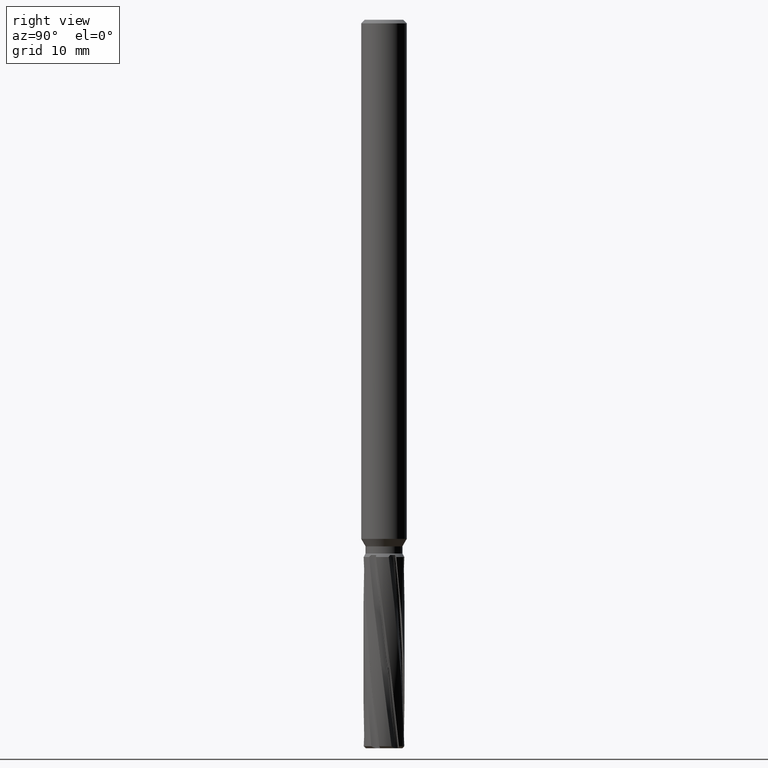
[diagram: clean part render]
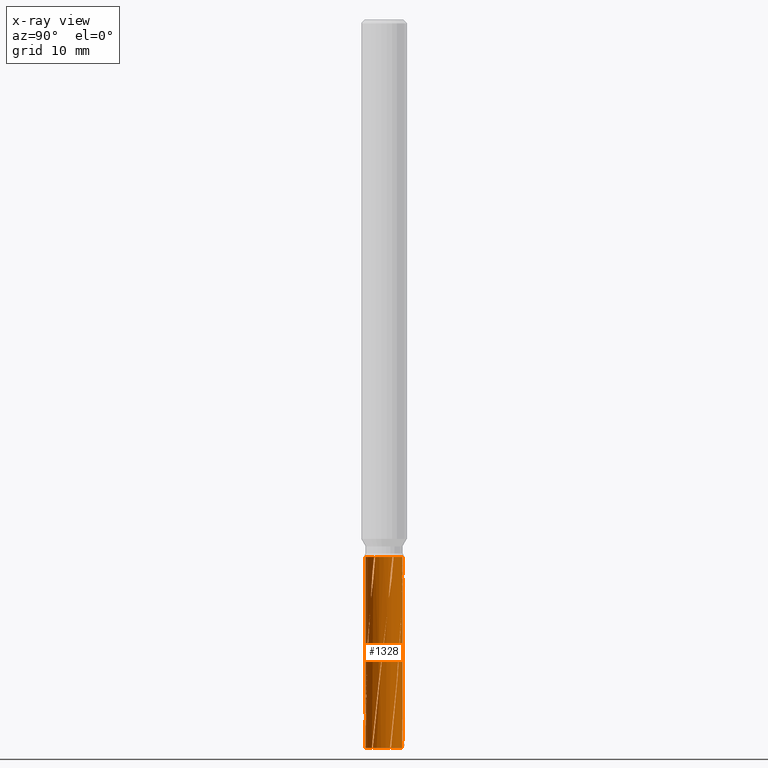
[diagram: x-ray — body ghosted, one internal face saturated and labeled with its STEP entity id]
A machine part, right view, then the same camera in x-ray: the body is ghosted and one INTERNAL B-rep face — a face not visible from any outside direction — is saturated and labeled: STEP entity #1328.
In plain terms, the highlighted cylindrical surface (edge-blend (fillet) strip) has radius 2.025 mm, axis along (-0, -0, 1).
Its self-contained STEP definition (entity closure, byte-faithful):
#752=EDGE_CURVE('',#1498,#1490,#2011,.T.);
#774=VERTEX_POINT('',#2033);
#786=VERTEX_POINT('',#2046);
#796=VERTEX_POINT('',#2057);
#814=EDGE_CURVE('',#1598,#1076,#2076,.T.);
#858=VERTEX_POINT('',#2122);
#884=VERTEX_POINT('',#2151);
#940=VERTEX_POINT('',#2214);
#942=EDGE_CURVE('',#1348,#858,#2216,.T.);
#1034=VERTEX_POINT('',#2317);
#1036=EDGE_CURVE('',#1526,#1112,#2319,.T.);
#1074=EDGE_CURVE('',#1756,#796,#2362,.T.);
#1076=VERTEX_POINT('',#2364);
#1112=VERTEX_POINT('',#2405);
#1234=EDGE_CURVE('',#1300,#884,#2534,.T.);
#1248=EDGE_CURVE('',#1034,#796,#2550,.T.);
#1300=VERTEX_POINT('',#2605);
#1328=ADVANCED_FACE('',(#2640),#2641,.F.);
#1330=EDGE_CURVE('',#1348,#1856,#2643,.T.);
#1348=VERTEX_POINT('',#2662);
#1370=EDGE_CURVE('',#1300,#1560,#2686,.T.);
#1400=VERTEX_POINT('',#2719);
#1424=EDGE_CURVE('',#1034,#786,#2743,.T.);
#1470=VERTEX_POINT('',#2792);
#1490=VERTEX_POINT('',#2814);
#1498=VERTEX_POINT('',#2824);
#1526=VERTEX_POINT('',#2853);
#1560=VERTEX_POINT('',#2892);
#1568=EDGE_CURVE('',#858,#1526,#2900,.T.);
#1598=VERTEX_POINT('',#2933);
#1646=EDGE_CURVE('',#1076,#1560,#2986,.T.);
#1680=EDGE_CURVE('',#1498,#1756,#3023,.T.);
#1696=EDGE_CURVE('',#1112,#1598,#3039,.T.);
#1704=EDGE_CURVE('',#1470,#1856,#3047,.T.);
#1710=EDGE_CURVE('',#774,#940,#3053,.T.);
#1712=EDGE_CURVE('',#1470,#786,#3055,.T.);
#1728=EDGE_CURVE('',#940,#1490,#3074,.T.);
#1756=VERTEX_POINT('',#3104);
#1856=VERTEX_POINT('',#3212);
#1868=EDGE_CURVE('',#774,#1400,#3225,.T.);
#1874=EDGE_CURVE('',#884,#1400,#3232,.T.);
#2011=CIRCLE('',#4028,2.025);
#2033=CARTESIAN_POINT('',(-1.73250904297211,1.04834985382736,-59.0));
#2046=CARTESIAN_POINT('',(3.76986801977085E-010,-2.025,-59.8832557996088));
#2057=CARTESIAN_POINT('',(-1.70332545662622,-1.09512893707047,-59.0));
#2076=CIRCLE('',#4406,2.025);
#2122=CARTESIAN_POINT('',(-1.52856325811313,-1.32820155320891,-80.0));
#2151=CARTESIAN_POINT('',(-0.31143547843148,2.00090802956412,-60.757443826211));
#2214=CARTESIAN_POINT('',(-1.88855492345453,0.730742978820623,-60.7574438262111));
#2216=CIRCLE('',#5102,2.025);
#2317=CARTESIAN_POINT('',(-0.0416430839821341,-2.0245717704138,-59.0));
#2319=CIRCLE('',#5838,2.025);
#2362=B_SPLINE_CURVE_WITH_KNOTS('',3,(#6070,#6071,#6072,#6073,#6074,#6075,#6076,#6077,#6078,#6079,#6080,#6081,#6082,#6083,#6084,#6085,#6086,#6087),.UNSPECIFIED.,.F.,.F.,(4,2,2,2,2,2,2,2,4),(0.0,1.27524139736683,1.42717103754914,1.46988879859441,1.49498374662603,1.51707624867421,1.54456344994193,1.59829725532202,1.64460690371373),.UNSPECIFIED.);
#2364=CARTESIAN_POINT('',(-0.385974657368293,1.98787538942194,-80.0));
#2405=CARTESIAN_POINT('',(-1.91453791548143,0.659673836213021,-80.0));
#2534=B_SPLINE_CURVE_WITH_KNOTS('',3,(#7282,#7283,#7284,#7285,#7286,#7287,#7288,#7289,#7290,#7291,#7292,#7293,#7294,#7295,#7296,#7297,#7298,#7299,#7300,#7301,#7302,#7303,#7304,#7305,#7306,#7307,#7308,#7309,#7310,#7311,#7312,#7313,#7314,#7315,#7316,#7317,#7318,#7319,#7320,#7321,#7322,#7323),.UNSPECIFIED.,.F.,.F.,(4,2,2,2,2,2,2,2,2,2,2,2,2,2,2,2,2,2,2,2,4),(0.0,0.505175303807412,1.14428144954258,1.32998421430831,1.73880439039993,2.33256994216791,2.41010496009628,2.42914903927009,2.43322689863991,2.43530067520471,2.43659890927,2.43769627818558,2.4389225074758,2.44093295089966,2.4453863071083,2.46543174452827,2.57583333125076,2.95957345489547,3.96451147653846,4.20685910941555,5.32789526401996),.UNSPECIFIED.);
#2550=CIRCLE('',#7675,2.025);
#2605=CARTESIAN_POINT('',(-3.76986940754963E-010,2.025,-59.8832557996088));
#2640=FACE_OUTER_BOUND('',#7957,.T.);
#2641=CYLINDRICAL_SURFACE('',#7958,2.025);
#2643=LINE('',#7961,#7962);
#2662=CARTESIAN_POINT('',(2.47982786649561E-016,-2.025,-80.0));
#2686=LINE('',#8222,#8223);
#2719=CARTESIAN_POINT('',(-0.0967467516093648,2.02268758488627,-59.0));
#2743=B_SPLINE_CURVE_WITH_KNOTS('',3,(#8538,#8539,#8540,#8541,#8542,#8543,#8544,#8545,#8546,#8547,#8548,#8549,#8550,#8551,#8552,#8553,#8554,#8555,#8556,#8557,#8558,#8559,#8560,#8561,#8562,#8563,#8564,#8565,#8566,#8567,#8568,#8569,#8570,#8571,#8572,#8573,#8574,#8575,#8576,#8577,#8578,#8579),.UNSPECIFIED.,.F.,.F.,(4,2,2,2,2,2,2,2,2,2,2,2,2,2,2,2,2,2,2,2,4),(0.0,0.505175301716471,1.14428144254571,1.32998420645629,1.73880436051843,2.33256995700777,2.41010498037675,2.42914906040999,2.4332269244743,2.4353007050559,2.43659894160524,2.43769631257753,2.43892254415773,2.44093299152524,2.44538635536927,2.46543182162214,2.57583356123416,2.95957419940637,3.96451370038363,4.20686167870062,5.32789935169217),.UNSPECIFIED.);
#2792=CARTESIAN_POINT('',(-5.52550762306174E-016,-2.025,-76.7677429326267));
#2814=CARTESIAN_POINT('',(-1.80007220823558,0.92755864781581,-59.0));
#2824=CARTESIAN_POINT('',(-1.77415212695425,-0.976221916586448,-59.0));
#2853=CARTESIAN_POINT('',(-1.59832459591781,-1.24337584264942,-80.0));
#2892=CARTESIAN_POINT('',(-1.55340353752914E-015,2.025,-76.7677429326267));
#2900=B_SPLINE_CURVE_WITH_KNOTS('',3,(#9311,#9312,#9313,#9314,#9315,#9316,#9317,#9318,#9319,#9320,#9321,#9322,#9323,#9324,#9325,#9326,#9327,#9328,#9329,#9330,#9331,#9332,#9333,#9334,#9335,#9336,#9337,#9338,#9339,#9340,#9341,#9342,#9343,#9344,#9345,#9346,#9347,#9348,#9349,#9350,#9351,#9352,#9353,#9354,#9355,#9356,#9357,#9358,#9359,#9360),.UNSPECIFIED.,.F.,.F.,(4,2,2,2,2,2,2,2,2,2,2,2,2,2,2,2,2,2,2,2,2,2,2,2,4),(0.0,2.98703623567296,3.9028094084057,6.73501946470454,8.97119993273934,11.9634666392782,15.3497501121254,15.6908486712531,15.7068127575704,15.7115543342679,15.7129764401485,15.7137328921582,15.7142262293881,15.7146650094546,15.7151982143902,15.7161339188691,15.7183507024257,15.7283352624674,15.7873416617822,16.0223824182631,17.7315453637301,18.8880761531135,19.1814779920079,20.665058405595,22.1464470185606),.UNSPECIFIED.);
#2933=CARTESIAN_POINT('',(-1.87595736414519,0.762501782233609,-80.0));
#2986=B_SPLINE_CURVE_WITH_KNOTS('',3,(#9989,#9990,#9991,#9992,#9993,#9994,#9995,#9996,#9997,#9998,#9999,#10000,#10001,#10002,#10003,#10004,#10005,#10006,#10007,#10008,#10009,#10010,#10011,#10012,#10013,#10014,#10015,#10016,#10017,#10018,#10019,#10020,#10021,#10022,#10023,#10024,#10025,#10026,#10027,#10028,#10029,#10030,#10031,#10032,#10033,#10034,#10035,#10036,#10037,#10038),.UNSPECIFIED.,.F.,.F.,(4,2,2,2,2,2,2,2,2,2,2,2,2,2,2,2,2,2,2,2,2,2,2,2,4),(0.0,2.98703623470969,3.90280940605496,6.73501946043637,8.97119992694924,11.9634666331291,15.3497501091327,15.6908486695551,15.7068127558647,15.7115543344403,15.7129764389068,15.7137328892284,15.7142262254452,15.7146650045995,15.7151982083587,15.716133911095,15.7183506901219,15.7283352286545,15.7873415001154,16.0223817457621,17.7315409794151,18.8880692553313,19.1814704550481,20.6650476433485,22.1464330345446),.UNSPECIFIED.);
#3023=B_SPLINE_CURVE_WITH_KNOTS('',3,(#10157,#10158,#10159,#10160,#10161,#10162,#10163,#10164,#10165,#10166,#10167,#10168,#10169,#10170,#10171,#10172,#10173,#10174,#10175,#10176,#10177,#10178,#10179,#10180,#10181,#10182,#10183,#10184,#10185,#10186,#10187,#10188,#10189,#10190,#10191,#10192,#10193,#10194,#10195,#10196,#10197,#10198),.UNSPECIFIED.,.F.,.F.,(4,2,2,2,2,2,2,2,2,2,2,2,2,2,2,2,2,2,2,2,4),(0.0,0.505175300584551,1.14428143883134,1.32998420180716,1.73880437330474,2.33256991827027,2.41010493592934,2.42914901538744,2.43322688154408,2.43530066396906,2.43659890167126,2.43769627361745,2.4389225062947,2.44093295549154,2.4453863249377,2.46543182608161,2.57583376489844,2.95957511242578,3.9645163214973,4.20686472386781,5.32790444481297),.UNSPECIFIED.);
#3039=B_SPLINE_CURVE_WITH_KNOTS('',3,(#10222,#10223,#10224,#10225,#10226,#10227,#10228,#10229,#10230,#10231,#10232,#10233,#10234,#10235,#10236,#10237,#10238,#10239,#10240,#10241,#10242,#10243,#10244,#10245,#10246,#10247,#10248,#10249,#10250,#10251,#10252,#10253,#10254,#10255,#10256,#10257,#10258,#10259,#10260,#10261,#10262,#10263,#10264,#10265,#10266,#10267,#10268,#10269,#10270,#10271),.UNSPECIFIED.,.F.,.F.,(4,2,2,2,2,2,2,2,2,2,2,2,2,2,2,2,2,2,2,2,2,2,2,2,4),(0.0,2.98703623660147,3.9028094094729,6.7350194680291,8.97119993701508,11.9634666451404,15.3497501277564,15.6908486914511,15.7068127779464,15.7115543583315,15.7129764631494,15.7137329134104,15.7142262496986,15.7146650289615,15.7151982328279,15.7161339355854,15.7183507145122,15.7283352503614,15.7873415059098,16.0223816872157,17.731540449123,18.8880684067927,19.1814695286859,20.6650463090351,22.1464312923779),.UNSPECIFIED.);
#3047=B_SPLINE_CURVE_WITH_KNOTS('',3,(#10344,#10345,#10346,#10347,#10348,#10349,#10350,#10351,#10352,#10353,#10354,#10355,#10356,#10357,#10358,#10359,#10360,#10361,#10362,#10363,#10364,#10365,#10366,#10367,#10368,#10369,#10370,#10371,#10372,#10373,#10374,#10375,#10376,#10377,#10378,#10379,#10380,#10381,#10382,#10383,#10384,#10385,#10386,#10387,#10388,#10389,#10390,#10391,#10392,#10393),.UNSPECIFIED.,.F.,.F.,(4,2,2,2,2,2,2,2,2,2,2,2,2,2,2,2,2,2,2,2,2,2,2,2,4),(0.0,2.98703623473837,3.90280940575264,6.73501946096666,8.97119992968954,11.9634666335966,15.3497501139165,15.6908486791252,15.7068127657085,15.7115543427841,15.7129764493767,15.7137329019629,15.7142262395164,15.7146650198967,15.7151982253685,15.7161339309139,15.7183507159597,15.7283352783248,15.7873416913644,16.0223825007269,17.7315458271608,18.8880768724235,19.1814787758889,20.6650595192565,22.1464484600533),.UNSPECIFIED.);
#3053=B_SPLINE_CURVE_WITH_KNOTS('',3,(#10456,#10457,#10458,#10459,#10460,#10461,#10462,#10463,#10464,#10465,#10466,#10467,#10468,#10469,#10470,#10471,#10472,#10473,#10474,#10475,#10476,#10477,#10478,#10479,#10480,#10481,#10482,#10483,#10484,#10485,#10486,#10487,#10488,#10489,#10490,#10491,#10492,#10493,#10494,#10495,#10496,#10497),.UNSPECIFIED.,.F.,.F.,(4,2,2,2,2,2,2,2,2,2,2,2,2,2,2,2,2,2,2,2,4),(0.0,0.505175303287873,1.14428144775944,1.32998421295055,1.73880437803354,2.33256995054143,2.41010497363379,2.42914905385131,2.43322692009167,2.43530070246372,2.43659894034602,2.43769631246638,2.43892254521256,2.44093299441526,2.44538636192494,2.46543184194877,2.57583365709082,2.95957455738378,3.96451476278513,4.20686291041331,5.3279013622028),.UNSPECIFIED.);
#3055=LINE('',#10500,#10501);
#3074=B_SPLINE_CURVE_WITH_KNOTS('',3,(#10752,#10753,#10754,#10755,#10756,#10757,#10758,#10759,#10760,#10761,#10762,#10763,#10764,#10765,#10766,#10767,#10768,#10769),.UNSPECIFIED.,.F.,.F.,(4,2,2,2,2,2,2,2,4),(0.0,1.27524139874265,1.42717103894308,1.46988879998623,1.4949837480416,1.51707625009658,1.54456345136774,1.59829725676356,1.64460690515378),.UNSPECIFIED.);
#3104=CARTESIAN_POINT('',(-1.57711944502307,-1.27016505074346,-60.7574438262107));
#3212=CARTESIAN_POINT('',(-9.16842692261304E-016,-2.025,-77.5368457073387));
#3225=CIRCLE('',#11769,2.025);
#3232=B_SPLINE_CURVE_WITH_KNOTS('',3,(#11941,#11942,#11943,#11944,#11945,#11946,#11947,#11948,#11949,#11950,#11951,#11952,#11953,#11954,#11955,#11956,#11957,#11958),.UNSPECIFIED.,.F.,.F.,(4,2,2,2,2,2,2,2,4),(0.0,1.27524139815027,1.42717103840948,1.46988879947422,1.49498374752788,1.517076249591,1.54456345086805,1.59829725625615,1.64460690469178),.UNSPECIFIED.);
#4028=AXIS2_PLACEMENT_3D('',#12081,#12082,#12083);
#4406=AXIS2_PLACEMENT_3D('',#12126,#12127,#12128);
#5102=AXIS2_PLACEMENT_3D('',#12265,#12266,#12267);
#5838=AXIS2_PLACEMENT_3D('',#12381,#12382,#12383);
#6070=CARTESIAN_POINT('',(-1.57711944313955,-1.27016505308216,-60.757443849237));
#6071=CARTESIAN_POINT('',(-1.60146120044553,-1.23994074590704,-60.334138554559));
#6072=CARTESIAN_POINT('',(-1.6352392283465,-1.19590125648152,-59.7741474127266));
#6073=CARTESIAN_POINT('',(-1.67306326355806,-1.14084831452031,-59.3105167048634));
#6074=CARTESIAN_POINT('',(-1.67734892037274,-1.13454388212788,-59.2601272949234));
#6075=CARTESIAN_POINT('',(-1.68306747361489,-1.12601685435565,-59.1970407664876));
#6076=CARTESIAN_POINT('',(-1.68434720404345,-1.12410187078332,-59.1831688503941));
#6077=CARTESIAN_POINT('',(-1.68641393280371,-1.12099730246313,-59.1612152297132));
#6078=CARTESIAN_POINT('',(-1.68718825442099,-1.11983159641365,-59.1530860548146));
#6079=CARTESIAN_POINT('',(-1.68866099772607,-1.11760932024828,-59.1378217433692));
#6080=CARTESIAN_POINT('',(-1.68935860098126,-1.1165545917282,-59.130671762988));
#6081=CARTESIAN_POINT('',(-1.69094127002201,-1.11415670286496,-59.1146462631996));
#6082=CARTESIAN_POINT('',(-1.69183277032835,-1.11280258510828,-59.1057528890595));
#6083=CARTESIAN_POINT('',(-1.69450560604576,-1.10873176691677,-59.0795295744658));
#6084=CARTESIAN_POINT('',(-1.69634202858604,-1.10592080348724,-59.0620733466106));
#6085=CARTESIAN_POINT('',(-1.69986990294183,-1.10048911925205,-59.0298619998616));
#6086=CARTESIAN_POINT('',(-1.70156901294785,-1.09786084847306,-59.0148597197898));
#6087=CARTESIAN_POINT('',(-1.70332545662622,-1.09512893707047,-59.0));
#7282=CARTESIAN_POINT('',(0.0416430839821543,2.0245717704138,-59.0));
#7283=CARTESIAN_POINT('',(0.0464989991859896,2.0244718898921,-59.1683217087008));
#7284=CARTESIAN_POINT('',(0.0375088001717238,2.02483284093919,-59.4263334873678));
#7285=CARTESIAN_POINT('',(-0.0236881303644931,2.02514991147878,-60.1823153393947));
#7286=CARTESIAN_POINT('',(-0.0779322816087154,2.024455268921,-60.6254761337555));
#7287=CARTESIAN_POINT('',(-0.158000432044439,2.01890747643567,-61.1826173102952));
#7288=CARTESIAN_POINT('',(-0.176689133292799,2.01737155893593,-61.3070851941862));
#7289=CARTESIAN_POINT('',(-0.238971801997668,2.01131029777954,-61.7089099300843));
#7290=CARTESIAN_POINT('',(-0.28363914243731,2.00592103906426,-61.9807582043633));
#7291=CARTESIAN_POINT('',(-0.427560252941033,1.98123596803807,-62.9061914774307));
#7292=CARTESIAN_POINT('',(-0.487019418794244,1.9657063475614,-63.312998463855));
#7293=CARTESIAN_POINT('',(-0.513012005156049,1.95894188423401,-63.4457512987481));
#7294=CARTESIAN_POINT('',(-0.515465324412978,1.95829628742263,-63.4565471241076));
#7295=CARTESIAN_POINT('',(-0.517828293849923,1.95767185461568,-63.4638574059328));
#7296=CARTESIAN_POINT('',(-0.518463298854121,1.95750383011099,-63.4656347515585));
#7297=CARTESIAN_POINT('',(-0.519239230412679,1.95729804619644,-63.4668791434204));
#7298=CARTESIAN_POINT('',(-0.51939313392936,1.95725721376848,-63.4670913526753));
#7299=CARTESIAN_POINT('',(-0.519638942453776,1.95719196218355,-63.4673280573054));
#7300=CARTESIAN_POINT('',(-0.519734882096526,1.95716648852455,-63.4674038506959));
#7301=CARTESIAN_POINT('',(-0.519903200526111,1.95712178123346,-63.4674818710971));
#7302=CARTESIAN_POINT('',(-0.519971720879672,1.95710357796413,-63.467501385656));
#7303=CARTESIAN_POINT('',(-0.520102706855588,1.95706877195869,-63.4675059888311));
#7304=CARTESIAN_POINT('',(-0.520160777613415,1.95705333826532,-63.4674958110033));
#7305=CARTESIAN_POINT('',(-0.520279798406946,1.95702170033793,-63.4674496143177));
#7306=CARTESIAN_POINT('',(-0.520336789069635,1.95700654796089,-63.4674120525885));
#7307=CARTESIAN_POINT('',(-0.520472276706924,1.9569705201568,-63.4672941792478));
#7308=CARTESIAN_POINT('',(-0.520544138112448,1.95695140565059,-63.4671992829707));
#7309=CARTESIAN_POINT('',(-0.520735695500348,1.95690044562375,-63.4668926334626));
#7310=CARTESIAN_POINT('',(-0.520843581775599,1.95687173098373,-63.4666213548969));
#7311=CARTESIAN_POINT('',(-0.521324973536473,1.95674358006034,-63.465122453752));
#7312=CARTESIAN_POINT('',(-0.521540194233272,1.95668618916755,-63.463134777926));
#7313=CARTESIAN_POINT('',(-0.522361963851976,1.95646709576485,-63.4526790422465));
#7314=CARTESIAN_POINT('',(-0.521868946964075,1.95659865321845,-63.4352566185066));
#7315=CARTESIAN_POINT('',(-0.518848880556406,1.9574030576003,-63.3634237539242));
#7316=CARTESIAN_POINT('',(-0.511337272599718,1.95939447015709,-63.2591810700344));
#7317=CARTESIAN_POINT('',(-0.482539905350361,1.96678497417031,-62.8790140676542));
#7318=CARTESIAN_POINT('',(-0.451523949242962,1.97449300369616,-62.4995594552611));
#7319=CARTESIAN_POINT('',(-0.39893792994878,1.98534187686431,-61.8275350812501));
#7320=CARTESIAN_POINT('',(-0.391213112063093,1.98685897085853,-61.727838104265));
#7321=CARTESIAN_POINT('',(-0.360330642301042,1.99285120050533,-61.3295260517521));
#7322=CARTESIAN_POINT('',(-0.338946222031545,1.99662606284276,-61.0611264847971));
#7323=CARTESIAN_POINT('',(-0.311435478431493,2.00090802956411,-60.757443826211));
#7675=AXIS2_PLACEMENT_3D('',#12581,#12582,#12583);
#7957=EDGE_LOOP('',(#12729,#12730,#12731,#12732,#12733,#12734,#12735,#12736,#12737,#12738,#12739,#12740,#12741,#12742,#12743,#12744,#12745,#12746,#12747,#12748));
#7958=AXIS2_PLACEMENT_3D('',#12749,#12750,#12751);
#7961=CARTESIAN_POINT('',(2.47982786649561E-016,-2.025,-69.5));
#7962=VECTOR('',#12752,1.0);
#8222=CARTESIAN_POINT('',(-2.47982786648502E-016,2.025,-69.5));
#8223=VECTOR('',#12784,1.0);
#8538=CARTESIAN_POINT('',(-0.041643083982139,-2.0245717704138,-59.0));
#8539=CARTESIAN_POINT('',(-0.046498999165883,-2.02447188989251,-59.1683217080041));
#8540=CARTESIAN_POINT('',(-0.037508800275782,-2.02483284093865,-59.4263334860823));
#8541=CARTESIAN_POINT('',(0.0236881303751746,-2.02514991147883,-60.1823153395268));
#8542=CARTESIAN_POINT('',(0.0779322815678362,-2.02445526892383,-60.625476133471));
#8543=CARTESIAN_POINT('',(0.158000432111585,-2.01890747643102,-61.1826173107624));
#8544=CARTESIAN_POINT('',(0.176689133384763,-2.01737155892886,-61.3070851948053));
#8545=CARTESIAN_POINT('',(0.238971800302248,-2.0113102979404,-61.7089099190894));
#8546=CARTESIAN_POINT('',(0.283639137270528,-2.00592103966204,-61.9807581721513));
#8547=CARTESIAN_POINT('',(0.427560248090636,-1.98123596928889,-62.9061914447738));
#8548=CARTESIAN_POINT('',(0.487019417371542,-1.96570634792684,-63.312998455446));
#8549=CARTESIAN_POINT('',(0.513012004891592,-1.95894188430346,-63.4457512975462));
#8550=CARTESIAN_POINT('',(0.515465324272018,-1.95829628745983,-63.4565471236158));
#8551=CARTESIAN_POINT('',(0.517828293812021,-1.95767185462571,-63.4638574058286));
#8552=CARTESIAN_POINT('',(0.518463298824787,-1.95750383011876,-63.4656347514935));
#8553=CARTESIAN_POINT('',(0.519239230545703,-1.95729804616116,-63.466879143635));
#8554=CARTESIAN_POINT('',(0.51939313402638,-1.95725721374273,-63.4670913527649));
#8555=CARTESIAN_POINT('',(0.519638942444872,-1.95719196218592,-63.4673280572995));
#8556=CARTESIAN_POINT('',(0.519734882084754,-1.95716648852767,-63.4674038506869));
#8557=CARTESIAN_POINT('',(0.519903200512393,-1.9571217812371,-63.4674818710911));
#8558=CARTESIAN_POINT('',(0.519971720868364,-1.95710357796713,-63.4675013856534));
#8559=CARTESIAN_POINT('',(0.520102706845836,-1.95706877196128,-63.4675059888313));
#8560=CARTESIAN_POINT('',(0.520160777603384,-1.95705333826799,-63.4674958110057));
#8561=CARTESIAN_POINT('',(0.520279798401548,-1.95702170033937,-63.4674496143207));
#8562=CARTESIAN_POINT('',(0.520336789067361,-1.95700654796149,-63.4674120525871));
#8563=CARTESIAN_POINT('',(0.520472276695289,-1.9569705201599,-63.4672941792582));
#8564=CARTESIAN_POINT('',(0.520544138097784,-1.95695140565449,-63.4671992829907));
#8565=CARTESIAN_POINT('',(0.520735695461744,-1.95690044563402,-63.4668926335295));
#8566=CARTESIAN_POINT('',(0.520843581732756,-1.95687173099513,-63.4666213550184));
#8567=CARTESIAN_POINT('',(0.521324973512706,-1.95674358006667,-63.4651224538671));
#8568=CARTESIAN_POINT('',(0.521540194210329,-1.95668618917367,-63.4631347781284));
#8569=CARTESIAN_POINT('',(0.522361963802971,-1.95646709577792,-63.4526790433467));
#8570=CARTESIAN_POINT('',(0.521868947053879,-1.95659865319447,-63.4352566217135));
#8571=CARTESIAN_POINT('',(0.518848881163683,-1.95740305743878,-63.3634237646549));
#8572=CARTESIAN_POINT('',(0.511337274384172,-1.95939446968654,-63.259181094903));
#8573=CARTESIAN_POINT('',(0.482539908472224,-1.96678497340207,-62.8790141054341));
#8574=CARTESIAN_POINT('',(0.451523952395913,-1.97449300300787,-62.4995594951417));
#8575=CARTESIAN_POINT('',(0.398937931772334,-1.98534187649722,-61.8275351046539));
#8576=CARTESIAN_POINT('',(0.391213113700882,-1.98685897053713,-61.7278381254248));
#8577=CARTESIAN_POINT('',(0.360330643621926,-1.99285120026575,-61.3295260686208));
#8578=CARTESIAN_POINT('',(0.33894622256732,-1.99662606275937,-61.0611264907114));
#8579=CARTESIAN_POINT('',(0.311435478431491,-2.00090802956411,-60.7574438262111));
#9311=CARTESIAN_POINT('',(-1.52856325811312,-1.32820155320892,-80.0));
#9312=CARTESIAN_POINT('',(-1.60368526483869,-1.24174725033673,-79.0109304871184));
#9313=CARTESIAN_POINT('',(-1.67182256016884,-1.14875687698336,-78.070260250064));
#9314=CARTESIAN_POINT('',(-1.751813370557,-1.01641112251959,-76.8036302519363));
#9315=CARTESIAN_POINT('',(-1.76984921194594,-0.984683387129174,-76.5042450236117));
#9316=CARTESIAN_POINT('',(-1.84037600205117,-0.852339664853845,-75.2546374036275));
#9317=CARTESIAN_POINT('',(-1.88496320246701,-0.748475143847337,-74.2834399880465));
#9318=CARTESIAN_POINT('',(-1.94881016523206,-0.557374453940387,-72.5616200961689));
#9319=CARTESIAN_POINT('',(-1.9708925035546,-0.472824140241953,-71.8202310880778));
#9320=CARTESIAN_POINT('',(-2.00937801908699,-0.276033252757438,-70.072316044921));
#9321=CARTESIAN_POINT('',(-2.02061641098757,-0.172946229827911,-69.1137620838553));
#9322=CARTESIAN_POINT('',(-2.02789417060675,0.0621617811846952,-67.0824791019366));
#9323=CARTESIAN_POINT('',(-2.02044593145169,0.181400627962237,-66.139733460058));
#9324=CARTESIAN_POINT('',(-2.00079403967382,0.312402242313184,-65.1828115742153));
#9325=CARTESIAN_POINT('',(-1.99210925775442,0.363893100579653,-64.8030561164394));
#9326=CARTESIAN_POINT('',(-1.98874366156708,0.381476459614308,-64.7252857342552));
#9327=CARTESIAN_POINT('',(-1.98853446037203,0.382566002366629,-64.7207878926258));
#9328=CARTESIAN_POINT('',(-1.9882831655083,0.383868657296713,-64.717295142837));
#9329=CARTESIAN_POINT('',(-1.98822425430107,0.384173664889837,-64.7166156179014));
#9330=CARTESIAN_POINT('',(-1.98815013647513,0.384556943698175,-64.7160612334251));
#9331=CARTESIAN_POINT('',(-1.98813097826792,0.384655982250453,-64.715939350836));
#9332=CARTESIAN_POINT('',(-1.98809985972935,0.384816775853203,-64.7158038967973));
#9333=CARTESIAN_POINT('',(-1.98808754027145,0.384880419172133,-64.7157611871062));
#9334=CARTESIAN_POINT('',(-1.98806567946333,0.384993319683048,-64.7157201033072));
#9335=CARTESIAN_POINT('',(-1.98805673211305,0.385039520333439,-64.7157115912177));
#9336=CARTESIAN_POINT('',(-1.98803943097266,0.385128839133147,-64.7157160196257));
#9337=CARTESIAN_POINT('',(-1.98803165915494,0.385168954769728,-64.7157265529489));
#9338=CARTESIAN_POINT('',(-1.98801522641395,0.385253762852453,-64.7157660379102));
#9339=CARTESIAN_POINT('',(-1.98800713585355,0.385295508954064,-64.7157975069611));
#9340=CARTESIAN_POINT('',(-1.98798734855517,0.385397595182308,-64.7158963583056));
#9341=CARTESIAN_POINT('',(-1.98797672309176,0.385452397201111,-64.7159770715783));
#9342=CARTESIAN_POINT('',(-1.98794759371984,0.385602614359505,-64.7162434616508));
#9343=CARTESIAN_POINT('',(-1.98793121350392,0.385687042870931,-64.7164853714291));
#9344=CARTESIAN_POINT('',(-1.98785962514353,0.386055961351306,-64.7178010706265));
#9345=CARTESIAN_POINT('',(-1.98783045839448,0.386206001755807,-64.7195457212487));
#9346=CARTESIAN_POINT('',(-1.98771929117116,0.386778060300495,-64.7291759754383));
#9347=CARTESIAN_POINT('',(-1.98784616601983,0.386127248343354,-64.7463997930297));
#9348=CARTESIAN_POINT('',(-1.98905600347355,0.379877749284032,-64.8539542102421));
#9349=CARTESIAN_POINT('',(-1.99217039378431,0.363264830663636,-65.0385479260219));
#9350=CARTESIAN_POINT('',(-2.0050587086999,0.290780609209755,-65.8306505805766));
#9351=CARTESIAN_POINT('',(-2.02436331392717,0.177234137118228,-66.956217267265));
#9352=CARTESIAN_POINT('',(-2.02540796755494,-0.107470189896355,-69.3763255127876));
#9353=CARTESIAN_POINT('',(-2.01696255519166,-0.21803642750787,-70.2527806845261));
#9354=CARTESIAN_POINT('',(-1.99121309919772,-0.369681191376949,-71.554790915533));
#9355=CARTESIAN_POINT('',(-1.98532400075453,-0.400073581592816,-71.8191411719061));
#9356=CARTESIAN_POINT('',(-1.94577301846575,-0.582031546195344,-73.4154690767215));
#9357=CARTESIAN_POINT('',(-1.89474772101321,-0.729786071683414,-74.742074915396));
#9358=CARTESIAN_POINT('',(-1.76817655613312,-0.998069763731951,-77.3390398337914));
#9359=CARTESIAN_POINT('',(-1.69265678909936,-1.12211446746646,-78.6813013346168));
#9360=CARTESIAN_POINT('',(-1.59832459591781,-1.24337584264942,-80.0));
#9989=CARTESIAN_POINT('',(-0.385974657368292,1.98787538942194,-80.0));
#9990=CARTESIAN_POINT('',(-0.273542031487979,2.00970580418641,-79.0109304874373));
#9991=CARTESIAN_POINT('',(-0.158941358119132,2.02221924622236,-78.0702602497701));
#9992=CARTESIAN_POINT('',(-0.0043311674819206,2.02532044285085,-76.8036302516851));
#9993=CARTESIAN_POINT('',(0.0321637780421664,2.02507607197724,-76.5042450235483));
#9994=CARTESIAN_POINT('',(0.182040198648355,2.01998220271758,-75.2546374033019));
#9995=CARTESIAN_POINT('',(0.29428311261914,2.0066635904483,-74.2834399875373));
#9996=CARTESIAN_POINT('',(0.491704646076556,1.96640633721483,-72.5616200962252));
#9997=CARTESIAN_POINT('',(0.575968534760439,1.94325504633799,-71.8202310884584));
#9998=CARTESIAN_POINT('',(0.765637200242849,1.87818903676308,-70.0723160461021));
#9999=CARTESIAN_POINT('',(0.860532376863664,1.8363782581858,-69.1137620849505));
#10000=CARTESIAN_POINT('',(1.06778076700036,1.72512697732173,-67.0824791014661));
#10001=CARTESIAN_POINT('',(1.16732051778024,1.65905718963497,-66.1397334603345));
#10002=CARTESIAN_POINT('',(1.27094529776632,1.57653734503271,-65.1828115752535));
#10003=CARTESIAN_POINT('',(1.31119529822118,1.54327067405682,-64.8030561165691));
#10004=CARTESIAN_POINT('',(1.32474013575137,1.5315643027286,-64.7252857342799));
#10005=CARTESIAN_POINT('',(1.32557910685818,1.53083835780103,-64.7207878926342));
#10006=CARTESIAN_POINT('',(1.32658159178033,1.52996940252023,-64.7172951425235));
#10007=CARTESIAN_POINT('',(1.32681628047641,1.52976588014265,-64.7166156177782));
#10008=CARTESIAN_POINT('',(1.32711115056701,1.52951005297554,-64.7160612336424));
#10009=CARTESIAN_POINT('',(1.32718734139238,1.52944394218208,-64.7159393509364));
#10010=CARTESIAN_POINT('',(1.32731103354884,1.52933659586549,-64.7158038968089));
#10011=CARTESIAN_POINT('',(1.32735999055543,1.52929410523855,-64.7157611871095));
#10012=CARTESIAN_POINT('',(1.32744683487178,1.52921872295937,-64.7157201033058));
#10013=CARTESIAN_POINT('',(1.32748237212893,1.52918787400553,-64.7157115912221));
#10014=CARTESIAN_POINT('',(1.32755107390155,1.52912823138446,-64.7157160196296));
#10015=CARTESIAN_POINT('',(1.32758192914951,1.52910144297767,-64.7157265529465));
#10016=CARTESIAN_POINT('',(1.32764715874494,1.52904480775489,-64.715766037915));
#10017=CARTESIAN_POINT('',(1.32767926665503,1.52901692806821,-64.7157975069798));
#10018=CARTESIAN_POINT('',(1.32775778226077,1.52894874866154,-64.715896358309));
#10019=CARTESIAN_POINT('',(1.32779992946722,1.5289121457329,-64.7159770715725));
#10020=CARTESIAN_POINT('',(1.32791545665512,1.52881181037883,-64.7162434616416));
#10021=CARTESIAN_POINT('',(1.32798038378243,1.52875541044039,-64.716485371406));
#10022=CARTESIAN_POINT('',(1.32826408238333,1.528508953857,-64.7178010706262));
#10023=CARTESIAN_POINT('',(1.32837943781078,1.52840867450905,-64.7195457212339));
#10024=CARTESIAN_POINT('',(1.3288192714305,1.52802637159793,-64.7291759753893));
#10025=CARTESIAN_POINT('',(1.32831908917551,1.52846165441102,-64.7463997928451));
#10026=CARTESIAN_POINT('',(1.32351178297793,1.53263415389112,-64.8539542097055));
#10027=CARTESIAN_POINT('',(1.31068176864169,1.54363775427307,-65.0385479246606));
#10028=CARTESIAN_POINT('',(1.25435274918507,1.59104147293665,-65.8306505762627));
#10029=CARTESIAN_POINT('',(1.1656709221506,1.66453298776786,-66.9562172669354));
#10030=CARTESIAN_POINT('',(0.919632069447318,1.8077898477271,-69.3763255101932));
#10031=CARTESIAN_POINT('',(0.819656192676555,1.85575902493047,-70.2527806822433));
#10032=CARTESIAN_POINT('',(0.675453246790264,1.90928172386039,-71.5547909134997));
#10033=CARTESIAN_POINT('',(0.646188115670167,1.91937781007761,-71.819141168878));
#10034=CARTESIAN_POINT('',(0.468832404927009,1.97610463696645,-73.4154690722415));
#10035=CARTESIAN_POINT('',(0.315360583383344,2.00579269596029,-74.7420749129649));
#10036=CARTESIAN_POINT('',(0.019734508257214,2.03032069784387,-77.339039830826));
#10037=CARTESIAN_POINT('',(-0.125451239979541,2.02694101301619,-78.6813013324435));
#10038=CARTESIAN_POINT('',(-0.277632768227394,2.00587762488303,-80.0));
#10157=CARTESIAN_POINT('',(-1.77415212695425,-0.976221916586448,-59.0));
#10158=CARTESIAN_POINT('',(-1.7764935854721,-0.971966630427592,-59.168321707627));
#10159=CARTESIAN_POINT('',(-1.77231107883456,-0.979932846518084,-59.4263334854146));
#10160=CARTESIAN_POINT('',(-1.7419872046215,-1.03308947841841,-60.1823153396112));
#10161=CARTESIAN_POINT('',(-1.71426355089919,-1.07971897011936,-60.6254761338461));
#10162=CARTESIAN_POINT('',(-1.6694249464426,-1.14628612620515,-61.1826173105288));
#10163=CARTESIAN_POINT('',(-1.65875045222158,-1.16170305753338,-61.307085194677));
#10164=CARTESIAN_POINT('',(-1.62235991175136,-1.21261080023302,-61.7089099302653));
#10165=CARTESIAN_POINT('',(-1.5953590065673,-1.24859922242895,-61.980758204665));
#10166=CARTESIAN_POINT('',(-1.50202055268955,-1.3608960247729,-62.906191477935));
#10167=CARTESIAN_POINT('',(-1.45884192393332,-1.40462436263182,-63.3129984641873));
#10168=CARTESIAN_POINT('',(-1.43998743367625,-1.42375237105865,-63.4457512989492));
#10169=CARTESIAN_POINT('',(-1.4382016708227,-1.42555420943861,-63.4565471241761));
#10170=CARTESIAN_POINT('',(-1.43647941144166,-1.42728838458461,-63.4638574059507));
#10171=CARTESIAN_POINT('',(-1.43601639545287,-1.42775430279458,-63.4656347515602));
#10172=CARTESIAN_POINT('',(-1.43545021541257,-1.42832338744277,-63.4668791437802));
#10173=CARTESIAN_POINT('',(-1.43533790177435,-1.42843625554369,-63.4670913528419));
#10174=CARTESIAN_POINT('',(-1.43515848809825,-1.42861650606099,-63.467328057318));
#10175=CARTESIAN_POINT('',(-1.43508845744635,-1.42868685539402,-63.4674038506972));
#10176=CARTESIAN_POINT('',(-1.43496558058703,-1.4288102697791,-63.4674818710947));
#10177=CARTESIAN_POINT('',(-1.43491555591495,-1.42886050851294,-63.4675013856559));
#10178=CARTESIAN_POINT('',(-1.43481992004198,-1.428956542693,-63.4675059888307));
#10179=CARTESIAN_POINT('',(-1.43477751869336,-1.42899911659698,-63.4674958110043));
#10180=CARTESIAN_POINT('',(-1.43469060904418,-1.42908637266765,-63.4674496143166));
#10181=CARTESIAN_POINT('',(-1.43464899136705,-1.42912815184315,-63.4674120525817));
#10182=CARTESIAN_POINT('',(-1.4345500465595,-1.4292274736722,-63.4672941792463));
#10183=CARTESIAN_POINT('',(-1.43449756220939,-1.4292801502212,-63.4671992829715));
#10184=CARTESIAN_POINT('',(-1.43435765082389,-1.42942056378577,-63.4668926334326));
#10185=CARTESIAN_POINT('',(-1.4342788400774,-1.42949963872199,-63.4666213548369));
#10186=CARTESIAN_POINT('',(-1.43392716225425,-1.42985246074189,-63.4651224537404));
#10187=CARTESIAN_POINT('',(-1.43376984993475,-1.43001015188634,-63.4631347778964));
#10188=CARTESIAN_POINT('',(-1.43316922467196,-1.43061227855175,-63.4526790421509));
#10189=CARTESIAN_POINT('',(-1.43352966522096,-1.43025109212095,-63.4352566182351));
#10190=CARTESIAN_POINT('',(-1.43573633308325,-1.42803784005273,-63.3634237531375));
#10191=CARTESIAN_POINT('',(-1.44121675100066,-1.42252830294112,-63.2591810679362));
#10192=CARTESIAN_POINT('',(-1.4620157988194,-1.40128430337118,-62.8790140664059));
#10193=CARTESIAN_POINT('',(-1.48419912641608,-1.37827771204208,-62.4995594507885));
#10194=CARTESIAN_POINT('',(-1.51988753567055,-1.33816132020615,-61.8275350796597));
#10195=CARTESIAN_POINT('',(-1.52506378655992,-1.3322299786652,-61.7278381025106));
#10196=CARTESIAN_POINT('',(-1.54569444452415,-1.30848109015923,-61.3295260502999));
#10197=CARTESIAN_POINT('',(-1.5596557812939,-1.29184907018053,-61.0611264842798));
#10198=CARTESIAN_POINT('',(-1.57711944502303,-1.27016505074351,-60.7574438262112));
#10222=CARTESIAN_POINT('',(-1.91453791548143,0.659673836213027,-80.0));
#10223=CARTESIAN_POINT('',(-1.87722729627883,0.767958553890385,-79.0109304868109));
#10224=CARTESIAN_POINT('',(-1.83076391832364,0.873462369230877,-78.0702602500867));
#10225=CARTESIAN_POINT('',(-1.75614453809536,1.00890932028626,-76.8036302523656));
#10226=CARTESIAN_POINT('',(-1.7376854339419,1.04039268479712,-76.5042450241048));
#10227=CARTESIAN_POINT('',(-1.65833580345689,1.16764253784819,-75.2546374038241));
#10228=CARTESIAN_POINT('',(-1.59068008990055,1.25818844662227,-74.2834399879443));
#10229=CARTESIAN_POINT('',(-1.45710551912033,1.40903188330328,-72.5616200958208));
#10230=CARTESIAN_POINT('',(-1.3949239687277,1.4704309061055,-71.8202310878246));
#10231=CARTESIAN_POINT('',(-1.24374081870901,1.6021557839655,-70.0723160447898));
#10232=CARTESIAN_POINT('',(-1.16008403399958,1.66343202831481,-69.1137620837017));
#10233=CARTESIAN_POINT('',(-0.960113403385403,1.78728875868854,-67.0824790992329));
#10234=CARTESIAN_POINT('',(-0.853125413345672,1.84045781771152,-66.1397334576915));
#10235=CARTESIAN_POINT('',(-0.729848741684149,1.88893958729786,-65.182811573361));
#10236=CARTESIAN_POINT('',(-0.680913959493633,1.90716377462617,-64.8030561163468));
#10237=CARTESIAN_POINT('',(-0.664003525814235,1.91304076233868,-64.7252857342684));
#10238=CARTESIAN_POINT('',(-0.662955353512718,1.91340436016611,-64.7207878926279));
#10239=CARTESIAN_POINT('',(-0.661701573598417,1.91383805997163,-64.7172951422248));
#10240=CARTESIAN_POINT('',(-0.661407973729756,1.9139395451457,-64.7166156176579));
#10241=CARTESIAN_POINT('',(-0.661038985971537,1.91406699651246,-64.7160612336915));
#10242=CARTESIAN_POINT('',(-0.660943636924046,1.91409992430888,-64.7159393509569));
#10243=CARTESIAN_POINT('',(-0.660788826185272,1.9141533717084,-64.715803896809));
#10244=CARTESIAN_POINT('',(-0.660727549717333,1.91417452440712,-64.7157611871062));
#10245=CARTESIAN_POINT('',(-0.660618844578908,1.91421204265562,-64.7157201032982));
#10246=CARTESIAN_POINT('',(-0.660574359978946,1.914227394344,-64.7157115912209));
#10247=CARTESIAN_POINT('',(-0.660488357071624,1.91425707051247,-64.7157160196283));
#10248=CARTESIAN_POINT('',(-0.660449730006508,1.91427039773776,-64.7157265529456));
#10249=CARTESIAN_POINT('',(-0.660368067670706,1.91429857061184,-64.7157660379124));
#10250=CARTESIAN_POINT('',(-0.660327869202539,1.914312437033,-64.7157975069699));
#10251=CARTESIAN_POINT('',(-0.660229566293475,1.91434634384159,-64.7158963583071));
#10252=CARTESIAN_POINT('',(-0.660176793622559,1.91436454292931,-64.7159770715758));
#10253=CARTESIAN_POINT('',(-0.660032137079443,1.91441442472619,-64.7162434616149));
#10254=CARTESIAN_POINT('',(-0.659950829737332,1.91444245329827,-64.7164853713515));
#10255=CARTESIAN_POINT('',(-0.659595542760228,1.91456491520698,-64.7178010706256));
#10256=CARTESIAN_POINT('',(-0.659451020583716,1.91461467626363,-64.7195457212348));
#10257=CARTESIAN_POINT('',(-0.658900019741788,1.91480443189587,-64.7291759753773));
#10258=CARTESIAN_POINT('',(-0.659527076839456,1.91458890276439,-64.7463997927952));
#10259=CARTESIAN_POINT('',(-0.665544220487634,1.91251190321275,-64.853954209674));
#10260=CARTESIAN_POINT('',(-0.681488625071863,1.90690258507489,-65.038547924103));
#10261=CARTESIAN_POINT('',(-0.750705959568645,1.88182208252512,-65.8306505776939));
#10262=CARTESIAN_POINT('',(-0.858692391708054,1.84176712495341,-66.9562172663392));
#10263=CARTESIAN_POINT('',(-1.10577589822715,1.70031965807405,-69.3763255113253));
#10264=CARTESIAN_POINT('',(-1.19730636264012,1.63772259762277,-70.2527806831773));
#10265=CARTESIAN_POINT('',(-1.3157598526893,1.53960053251996,-71.5547909161416));
#10266=CARTESIAN_POINT('',(-1.3391358855909,1.51930422845237,-71.819141173835));
#10267=CARTESIAN_POINT('',(-1.47694061432582,1.39407309059356,-73.4154690802861));
#10268=CARTESIAN_POINT('',(-1.5793871380673,1.27600662411997,-74.742074917545));
#10269=CARTESIAN_POINT('',(-1.74844204817247,1.03225093414725,-77.339039833481));
#10270=CARTESIAN_POINT('',(-1.81810802928133,0.904826545633973,-78.6813013335145));
#10271=CARTESIAN_POINT('',(-1.87595736414519,0.762501782233607,-80.0));
#10344=CARTESIAN_POINT('',(0.385974657368285,-1.98787538942194,-80.0));
#10345=CARTESIAN_POINT('',(0.273542031486903,-2.00970580418662,-79.0109304874279));
#10346=CARTESIAN_POINT('',(0.158941358117426,-2.0222192462225,-78.0702602497562));
#10347=CARTESIAN_POINT('',(0.00433116749357632,-2.02532044285058,-76.8036302517805));
#10348=CARTESIAN_POINT('',(-0.0321637780040473,-2.02507607197713,-76.5042450238601));
#10349=CARTESIAN_POINT('',(-0.182040198523639,-2.01998220272616,-75.2546374043598));
#10350=CARTESIAN_POINT('',(-0.294283112476045,-2.00666359047387,-74.2834399887795));
#10351=CARTESIAN_POINT('',(-0.491704646138391,-1.96640633720508,-72.5616200956902));
#10352=CARTESIAN_POINT('',(-0.575968534920332,-1.94325504629561,-71.8202310870663));
#10353=CARTESIAN_POINT('',(-0.765637200455114,-1.87818903667357,-70.0723160440369));
#10354=CARTESIAN_POINT('',(-0.860532377074648,-1.8363782580896,-69.1137620828482));
#10355=CARTESIAN_POINT('',(-1.0677807675034,-1.72512697703239,-67.0824790965743));
#10356=CARTESIAN_POINT('',(-1.16732051825038,-1.65905718928075,-66.1397334558954));
#10357=CARTESIAN_POINT('',(-1.27094529806848,-1.57653734479005,-65.1828115724726));
#10358=CARTESIAN_POINT('',(-1.311195298274,-1.54327067401122,-64.8030561162413));
#10359=CARTESIAN_POINT('',(-1.32474013575411,-1.53156430272622,-64.7252857342644));
#10360=CARTESIAN_POINT('',(-1.32557910685982,-1.53083835779961,-64.7207878926266));
#10361=CARTESIAN_POINT('',(-1.32658159170432,-1.52996940258611,-64.7172951427876));
#10362=CARTESIAN_POINT('',(-1.32681628042072,-1.52976588019097,-64.7166156178828));
#10363=CARTESIAN_POINT('',(-1.32711115070717,-1.52951005285393,-64.7160612333789));
#10364=CARTESIAN_POINT('',(-1.32718734149984,-1.52944394208883,-64.7159393508159));
#10365=CARTESIAN_POINT('',(-1.32731103355671,-1.52933659585866,-64.7158038967975));
#10366=CARTESIAN_POINT('',(-1.32735999055814,-1.5292941052362,-64.7157611871075));
#10367=CARTESIAN_POINT('',(-1.32744683486053,-1.52921872296914,-64.7157201033105));
#10368=CARTESIAN_POINT('',(-1.32748237212462,-1.52918787400928,-64.715711591218));
#10369=CARTESIAN_POINT('',(-1.32755107390891,-1.52912823137808,-64.7157160196263));
#10370=CARTESIAN_POINT('',(-1.32758192916366,-1.52910144296539,-64.7157265529552));
#10371=CARTESIAN_POINT('',(-1.32764715874271,-1.52904480775683,-64.7157660379137));
#10372=CARTESIAN_POINT('',(-1.32767926664988,-1.52901692807268,-64.7157975069715));
#10373=CARTESIAN_POINT('',(-1.32775778225986,-1.52894874866232,-64.715896358306));
#10374=CARTESIAN_POINT('',(-1.32779992946455,-1.52891214573522,-64.7159770715625));
#10375=CARTESIAN_POINT('',(-1.3279154566396,-1.52881181039231,-64.7162434616022));
#10376=CARTESIAN_POINT('',(-1.32798038376574,-1.52875541045489,-64.7164853713257));
#10377=CARTESIAN_POINT('',(-1.32826408238428,-1.52850895385618,-64.7178010706285));
#10378=CARTESIAN_POINT('',(-1.32837943781162,-1.52840867450832,-64.7195457212553));
#10379=CARTESIAN_POINT('',(-1.32881927143057,-1.52802637159786,-64.7291759754053));
#10380=CARTESIAN_POINT('',(-1.32831908917421,-1.52846165441216,-64.7463997928941));
#10381=CARTESIAN_POINT('',(-1.32351178296608,-1.53263415390139,-64.8539542098993));
#10382=CARTESIAN_POINT('',(-1.31068176861392,-1.5436377542968,-65.0385479250687));
#10383=CARTESIAN_POINT('',(-1.25435274916646,-1.59104147294962,-65.830650576395));
#10384=CARTESIAN_POINT('',(-1.16567092278418,-1.66453298740226,-66.9562172607355));
#10385=CARTESIAN_POINT('',(-0.919632068977551,-1.80778984799839,-69.3763255147921));
#10386=CARTESIAN_POINT('',(-0.819656192224867,-1.85575902510678,-70.2527806863202));
#10387=CARTESIAN_POINT('',(-0.675453246629115,-1.90928172391801,-71.5547909149553));
#10388=CARTESIAN_POINT('',(-0.646188115475009,-1.91937781014447,-71.8191411706404));
#10389=CARTESIAN_POINT('',(-0.468832404648877,-1.97610463703296,-73.4154690747173));
#10390=CARTESIAN_POINT('',(-0.315360583296012,-2.00579269597774,-74.7420749137032));
#10391=CARTESIAN_POINT('',(-0.0197345080893816,-2.03032069784761,-77.3390398323297));
#10392=CARTESIAN_POINT('',(0.12545124003737,-2.02694101300818,-78.6813013329448));
#10393=CARTESIAN_POINT('',(0.277632768227376,-2.00587762488303,-80.0));
#10456=CARTESIAN_POINT('',(-1.73250904297211,1.04834985382737,-59.0));
#10457=CARTESIAN_POINT('',(-1.72999458630364,1.0525052594874,-59.1683217085277));
#10458=CARTESIAN_POINT('',(-1.73480227857249,1.04489999430433,-59.426333487074));
#10459=CARTESIAN_POINT('',(-1.76567533499348,0.992060433077622,-60.1823153393657));
#10460=CARTESIAN_POINT('',(-1.79219583247038,0.944736298904221,-60.6254761330466));
#10461=CARTESIAN_POINT('',(-1.82742537855267,0.872621350162572,-61.1826173110358));
#10462=CARTESIAN_POINT('',(-1.83543958564058,0.855668501286726,-61.3070851954819));
#10463=CARTESIAN_POINT('',(-1.8613317134396,0.798699498282234,-61.7089099249683));
#10464=CARTESIAN_POINT('',(-1.87899814801185,0.757321819029745,-61.9807581884653));
#10465=CARTESIAN_POINT('',(-1.92958080489664,0.620339946051432,-62.906191458975));
#10466=CARTESIAN_POINT('',(-1.94586134246922,0.561081986024737,-63.3129984571905));
#10467=CARTESIAN_POINT('',(-1.95299943879772,0.535189513441221,-63.4457512977027));
#10468=CARTESIAN_POINT('',(-1.95366699521694,0.532742078125737,-63.4565471236572));
#10469=CARTESIAN_POINT('',(-1.95430770528502,0.530383470075697,-63.4638574058232));
#10470=CARTESIAN_POINT('',(-1.95447969429998,0.529749527349466,-63.4656347514891));
#10471=CARTESIAN_POINT('',(-1.95468944604504,0.528974658716416,-63.4668791437485));
#10472=CARTESIAN_POINT('',(-1.954731035869,0.528820958200571,-63.4670913528173));
#10473=CARTESIAN_POINT('',(-1.95479743055785,0.528575456141137,-63.4673280573005));
#10474=CARTESIAN_POINT('',(-1.95482333954268,0.528479633146447,-63.4674038506884));
#10475=CARTESIAN_POINT('',(-1.95486878111006,0.528311511456059,-63.4674818710979));
#10476=CARTESIAN_POINT('',(-1.95488727679204,0.528243069458721,-63.4675013856533));
#10477=CARTESIAN_POINT('',(-1.95492262689377,0.528112229278176,-63.4675059888312));
#10478=CARTESIAN_POINT('',(-1.95493829630152,0.528054221682341,-63.4674958110085));
#10479=CARTESIAN_POINT('',(-1.95497040745172,0.527935327679462,-63.4674496143222));
#10480=CARTESIAN_POINT('',(-1.95498578044018,0.527878396127157,-63.4674120525904));
#10481=CARTESIAN_POINT('',(-1.95502232326316,0.527743046497064,-63.4672941792604));
#10482=CARTESIAN_POINT('',(-1.95504170031708,0.527671255444464,-63.4671992829936));
#10483=CARTESIAN_POINT('',(-1.95509334632371,0.527479881902043,-63.4668926335512));
#10484=CARTESIAN_POINT('',(-1.95512242185219,0.527372092332279,-63.4666213550604));
#10485=CARTESIAN_POINT('',(-1.95525213578574,0.526891119345793,-63.4651224538771));
#10486=CARTESIAN_POINT('',(-1.95531004416328,0.526676037307644,-63.4631347781427));
#10487=CARTESIAN_POINT('',(-1.95553118851242,0.525854817268977,-63.4526790434392));
#10488=CARTESIAN_POINT('',(-1.95539861220596,0.526347560994168,-63.4352566219929));
#10489=CARTESIAN_POINT('',(-1.95458521378059,0.529365216864188,-63.3634237653534));
#10490=CARTESIAN_POINT('',(-1.95255402401321,0.536866165185744,-63.259181096842));
#10491=CARTESIAN_POINT('',(-1.94455570500555,0.56550066755554,-62.8790141060999));
#10492=CARTESIAN_POINT('',(-1.9357230764644,0.59621528810088,-62.499559497874));
#10493=CARTESIAN_POINT('',(-1.91882546617275,0.647180554673221,-61.8275351063447));
#10494=CARTESIAN_POINT('',(-1.91627689911065,0.654628990398748,-61.7278381269156));
#10495=CARTESIAN_POINT('',(-1.90602508723926,0.684370108894111,-61.3295260699582));
#10496=CARTESIAN_POINT('',(-1.89860200350642,0.704776992080718,-61.0611264911661));
#10497=CARTESIAN_POINT('',(-1.88855492345455,0.730742978820588,-60.7574438262114));
#10500=CARTESIAN_POINT('',(2.47982786649561E-016,-2.025,-69.5));
#10501=VECTOR('',#13054,1.0);
#10752=CARTESIAN_POINT('',(-1.88855492453813,0.730742976020132,-60.757443849237));
#10753=CARTESIAN_POINT('',(-1.87455078535058,0.766935709846473,-60.3341385541024));
#10754=CARTESIAN_POINT('',(-1.85330048268974,0.818208084802955,-59.7741474124638));
#10755=CARTESIAN_POINT('',(-1.82453525401626,0.878491131123728,-59.3105167048349));
#10756=CARTESIAN_POINT('',(-1.82121828381502,0.885354834993986,-59.2601272948903));
#10757=CARTESIAN_POINT('',(-1.81669293776845,0.89457076125682,-59.1970407664819));
#10758=CARTESIAN_POINT('',(-1.81567437856161,0.896636532103427,-59.1831688503929));
#10759=CARTESIAN_POINT('',(-1.81401910790743,0.89997865587514,-59.1612152296958));
#10760=CARTESIAN_POINT('',(-1.81339673766454,0.901232091089794,-59.1530860548062));
#10761=CARTESIAN_POINT('',(-1.81220856170455,0.903618662286118,-59.1378217433724));
#10762=CARTESIAN_POINT('',(-1.8116439416394,0.904750168687431,-59.1306717629878));
#10763=CARTESIAN_POINT('',(-1.81035864348804,0.907319744715557,-59.1146462631906));
#10764=CARTESIAN_POINT('',(-1.8096316932644,0.908768865506299,-59.1057528890529));
#10765=CARTESIAN_POINT('',(-1.80744267915468,0.913119018234242,-59.0795295744547));
#10766=CARTESIAN_POINT('',(-1.80592652468532,0.916114888521787,-59.0620733465951));
#10767=CARTESIAN_POINT('',(-1.80298648533003,0.921885959453167,-59.0298619998454));
#10768=CARTESIAN_POINT('',(-1.801559891071,0.924671567270522,-59.0148597197806));
#10769=CARTESIAN_POINT('',(-1.80007220823558,0.927558647815804,-59.0));
#11769=AXIS2_PLACEMENT_3D('',#13189,#13190,#13191);
#11941=CARTESIAN_POINT('',(-0.311435481398574,2.0009080291023,-60.7574438492369));
#11942=CARTESIAN_POINT('',(-0.273089584896593,2.00687645571814,-60.3341385542989));
#11943=CARTESIAN_POINT('',(-0.218061254346695,2.01410934125444,-59.7741474126582));
#11944=CARTESIAN_POINT('',(-0.151471990465976,2.01933944563949,-59.3105167049028));
#11945=CARTESIAN_POINT('',(-0.143869363447135,2.01989871711696,-59.2601272949392));
#11946=CARTESIAN_POINT('',(-0.133625464154554,2.02058761561158,-59.1970407664909));
#11947=CARTESIAN_POINT('',(-0.131327174518987,2.02073840288653,-59.1831688503985));
#11948=CARTESIAN_POINT('',(-0.127605175104726,2.02097595833563,-59.1612152297113));
#11949=CARTESIAN_POINT('',(-0.126208483244445,2.02106368750211,-59.153086054816));
#11950=CARTESIAN_POINT('',(-0.12354756397897,2.02122798253485,-59.1378217433734));
#11951=CARTESIAN_POINT('',(-0.1222853406589,2.02130476041556,-59.1306717629921));
#11952=CARTESIAN_POINT('',(-0.11941737346729,2.02147644757903,-59.1146462632025));
#11953=CARTESIAN_POINT('',(-0.117798922937392,2.02157145061345,-59.1057528890639));
#11954=CARTESIAN_POINT('',(-0.112937073110806,2.02185078514911,-59.0795295744708));
#11955=CARTESIAN_POINT('',(-0.109584496102496,2.02203569200626,-59.0620733466201));
#11956=CARTESIAN_POINT('',(-0.103116582389111,2.02237507870227,-59.0298619998583));
#11957=CARTESIAN_POINT('',(-0.0999908781237597,2.0225324157418,-59.0148597197884));
#11958=CARTESIAN_POINT('',(-0.0967467516093641,2.02268758488627,-59.0));
#12081=CARTESIAN_POINT('',(0.0,0.0,-59.0));
#12082=DIRECTION('',(0.0,0.0,-1.0));
#12083=DIRECTION('',(0.0,1.0,0.0));
#12126=CARTESIAN_POINT('',(0.0,0.0,-80.0));
#12127=DIRECTION('',(0.0,0.0,-1.0));
#12128=DIRECTION('',(0.0,1.0,0.0));
#12265=CARTESIAN_POINT('',(0.0,0.0,-80.0));
#12266=DIRECTION('',(0.0,0.0,-1.0));
#12267=DIRECTION('',(0.0,1.0,0.0));
#12381=CARTESIAN_POINT('',(0.0,0.0,-80.0));
#12382=DIRECTION('',(0.0,0.0,-1.0));
#12383=DIRECTION('',(0.0,1.0,0.0));
#12581=CARTESIAN_POINT('',(0.0,0.0,-59.0));
#12582=DIRECTION('',(0.0,0.0,-1.0));
#12583=DIRECTION('',(0.0,1.0,0.0));
#12729=ORIENTED_EDGE('',*,*,#1370,.F.);
#12730=ORIENTED_EDGE('',*,*,#1234,.T.);
#12731=ORIENTED_EDGE('',*,*,#1874,.T.);
#12732=ORIENTED_EDGE('',*,*,#1868,.F.);
#12733=ORIENTED_EDGE('',*,*,#1710,.T.);
#12734=ORIENTED_EDGE('',*,*,#1728,.T.);
#12735=ORIENTED_EDGE('',*,*,#752,.F.);
#12736=ORIENTED_EDGE('',*,*,#1680,.T.);
#12737=ORIENTED_EDGE('',*,*,#1074,.T.);
#12738=ORIENTED_EDGE('',*,*,#1248,.F.);
#12739=ORIENTED_EDGE('',*,*,#1424,.T.);
#12740=ORIENTED_EDGE('',*,*,#1712,.F.);
#12741=ORIENTED_EDGE('',*,*,#1704,.T.);
#12742=ORIENTED_EDGE('',*,*,#1330,.F.);
#12743=ORIENTED_EDGE('',*,*,#942,.T.);
#12744=ORIENTED_EDGE('',*,*,#1568,.T.);
#12745=ORIENTED_EDGE('',*,*,#1036,.T.);
#12746=ORIENTED_EDGE('',*,*,#1696,.T.);
#12747=ORIENTED_EDGE('',*,*,#814,.T.);
#12748=ORIENTED_EDGE('',*,*,#1646,.T.);
#12749=CARTESIAN_POINT('',(0.0,0.0,-69.5));
#12750=DIRECTION('',(-0.0,-0.0,1.0));
#12751=DIRECTION('',(0.0,1.0,0.0));
#12752=DIRECTION('',(0.0,-0.0,1.0));
#12784=DIRECTION('',(0.0,-0.0,-1.0));
#13054=DIRECTION('',(0.0,-0.0,1.0));
#13189=CARTESIAN_POINT('',(0.0,0.0,-59.0));
#13190=DIRECTION('',(0.0,0.0,-1.0));
#13191=DIRECTION('',(0.0,1.0,0.0));